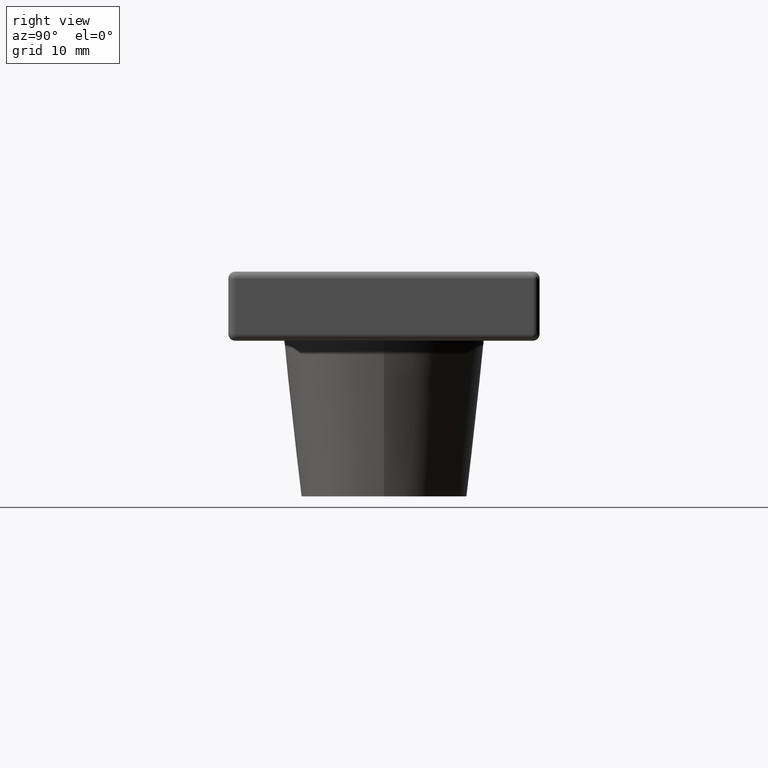
[diagram: clean part render]
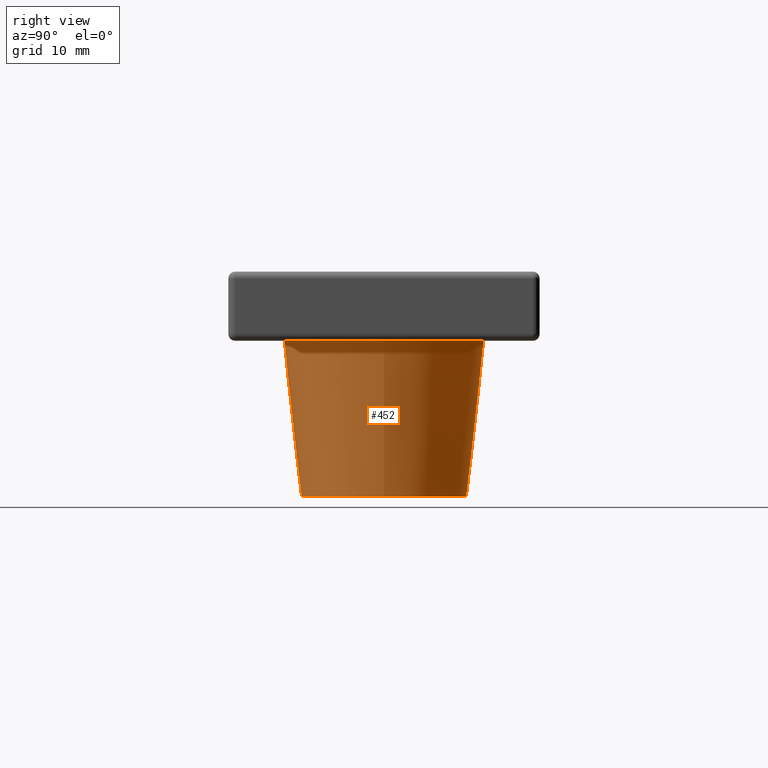
[diagram: same view with one face highlighted and labeled with its STEP entity id]
A machine part, right view. The second image highlights one B-rep face of the part: STEP entity #452.
In plain terms, the highlighted conical surface has half-angle 6.34 deg.
Its self-contained STEP definition (entity closure, byte-faithful):
#71=CONICAL_SURFACE('',#492,14.5,6.34019174590991);
#83=FACE_BOUND('',#136,.T.);
#98=FACE_OUTER_BOUND('',#135,.T.);
#135=EDGE_LOOP('',(#317));
#136=EDGE_LOOP('',(#318));
#183=CIRCLE('',#491,12.);
#184=CIRCLE('',#493,14.5);
#219=VERTEX_POINT('',#733);
#220=VERTEX_POINT('',#736);
#255=EDGE_CURVE('',#219,#219,#183,.T.);
#256=EDGE_CURVE('',#220,#220,#184,.T.);
#317=ORIENTED_EDGE('',*,*,#256,.F.);
#318=ORIENTED_EDGE('',*,*,#255,.T.);
#452=ADVANCED_FACE('',(#98,#83),#71,.T.);
#491=AXIS2_PLACEMENT_3D('',#734,#568,#569);
#492=AXIS2_PLACEMENT_3D('',#735,#570,#571);
#493=AXIS2_PLACEMENT_3D('',#737,#572,#573);
#568=DIRECTION('center_axis',(0.,0.,1.));
#569=DIRECTION('ref_axis',(-1.,0.,0.));
#570=DIRECTION('center_axis',(0.,0.,1.));
#571=DIRECTION('ref_axis',(1.,0.,0.));
#572=DIRECTION('center_axis',(0.,0.,1.));
#573=DIRECTION('ref_axis',(1.,0.,0.));
#733=CARTESIAN_POINT('',(-56.7071067811865,0.,-22.7928932188135));
#734=CARTESIAN_POINT('Origin',(-44.7071067811865,0.,-22.7928932188135));
#735=CARTESIAN_POINT('Origin',(-44.7071067811866,0.,-0.292893218813449));
#736=CARTESIAN_POINT('',(-30.2071067811866,0.,-0.292893218813449));
#737=CARTESIAN_POINT('Origin',(-44.7071067811866,0.,-0.292893218813449));